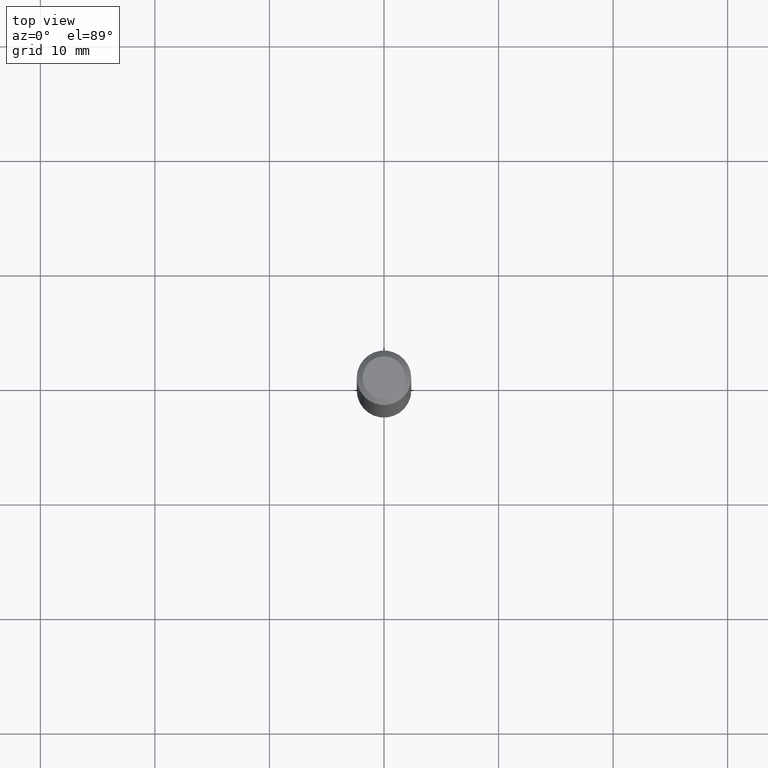
[diagram: clean part render]
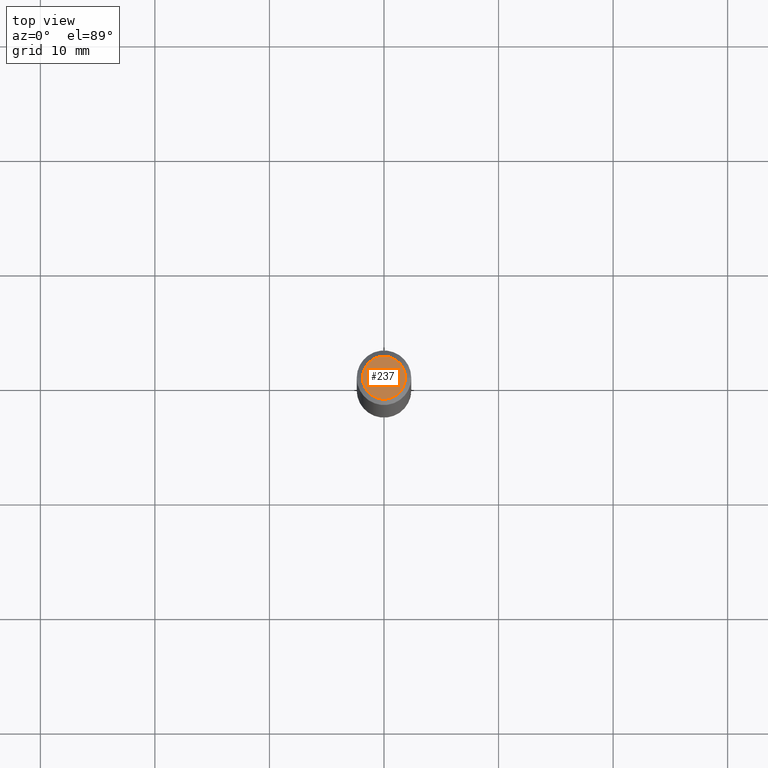
[diagram: same view with one face highlighted and labeled with its STEP entity id]
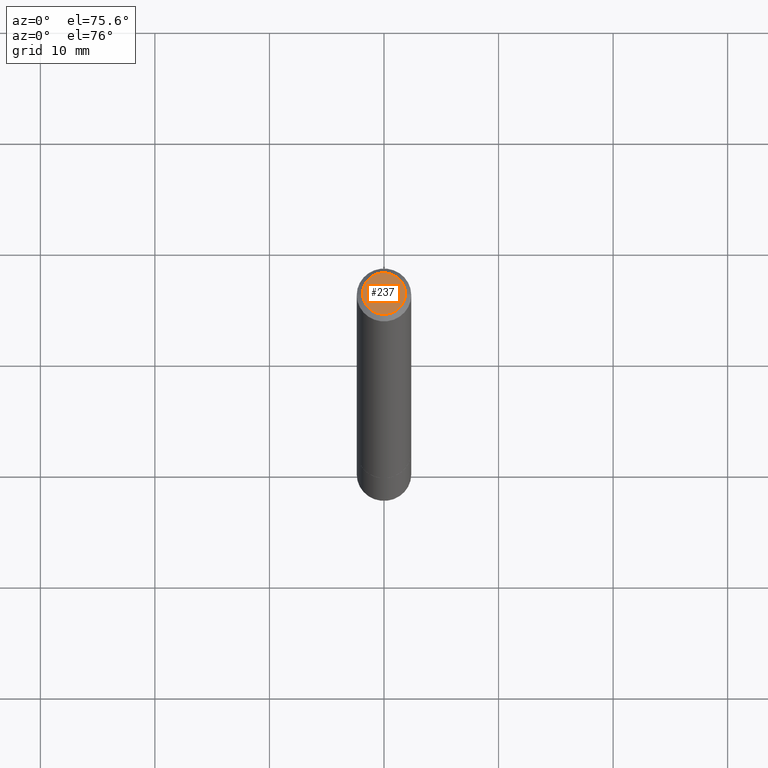
[diagram: same view with one face highlighted and labeled with its STEP entity id]
A machine part, top view. The second image highlights one B-rep face of the part: STEP entity #237.
A second angle (auxiliary view) of the same face is appended — the face is thin or edge-on in the first view.
In plain terms, the highlighted planar face has unit normal (0, -0, -1).
Its self-contained STEP definition (entity closure, byte-faithful):
#6 = DIRECTION ( 'NONE',  ( -1.000000000000000000, 6.982962677686265922E-15, -4.876176775795935793E-29 ) ) ;
#38 = VERTEX_POINT ( 'NONE', #235 ) ;
#58 = FACE_OUTER_BOUND ( 'NONE', #348, .T. ) ;
#89 = DIRECTION ( 'NONE',  ( 2.438088387897960049E-29, -3.491481338843145188E-15, -1.000000000000000000 ) ) ;
#116 = DIRECTION ( 'NONE',  ( -2.445468806185136597E-29, 3.491481338843145583E-15, 1.000000000000000000 ) ) ;
#156 = ORIENTED_EDGE ( 'NONE', *, *, #173, .T. ) ;
#162 = AXIS2_PLACEMENT_3D ( 'NONE', #259, #89, #6 ) ;
#168 = EDGE_CURVE ( 'NONE', #38, #312, #337, .T. ) ;
#173 = EDGE_CURVE ( 'NONE', #312, #38, #355, .T. ) ;
#178 = DIRECTION ( 'NONE',  ( 1.000000000000000000, -6.982962677686265922E-15, 4.873299312102244827E-29 ) ) ;
#219 = CARTESIAN_POINT ( 'NONE',  ( -0.07374999999999973244, 5.499083108677911763E-16, -5.122214988120865778E-17 ) ) ;
#235 = CARTESIAN_POINT ( 'NONE',  ( 0.07374999999999973244, -6.094815207017955281E-16, -5.122214988120099720E-17 ) ) ;
#237 = ADVANCED_FACE ( 'NONE', ( #58 ), #339, .F. ) ;
#239 = ORIENTED_EDGE ( 'NONE', *, *, #168, .T. ) ;
#254 = CARTESIAN_POINT ( 'NONE',  ( 1.252621697202263706E-45, -1.788411804456536750E-31, -5.122214988120493535E-17 ) ) ;
#259 = CARTESIAN_POINT ( 'NONE',  ( 5.149934974793602175E-16, 0.07374999999999973244, -2.831078236802835070E-16 ) ) ;
#286 = AXIS2_PLACEMENT_3D ( 'NONE', #316, #116, #311 ) ;
#289 = DIRECTION ( 'NONE',  ( -2.445468806185136597E-29, 3.491481338843145583E-15, 1.000000000000000000 ) ) ;
#311 = DIRECTION ( 'NONE',  ( 1.000000000000000000, -6.982962677686265922E-15, 4.873299312102244827E-29 ) ) ;
#312 = VERTEX_POINT ( 'NONE', #219 ) ;
#316 = CARTESIAN_POINT ( 'NONE',  ( 1.252621697202263706E-45, -1.788411804456536750E-31, -5.122214988120493535E-17 ) ) ;
#337 = CIRCLE ( 'NONE', #286, 0.07374999999999973244 ) ;
#339 = PLANE ( 'NONE',  #162 ) ;
#348 = EDGE_LOOP ( 'NONE', ( #156, #239 ) ) ;
#350 = AXIS2_PLACEMENT_3D ( 'NONE', #254, #289, #178 ) ;
#355 = CIRCLE ( 'NONE', #350, 0.07374999999999973244 ) ;